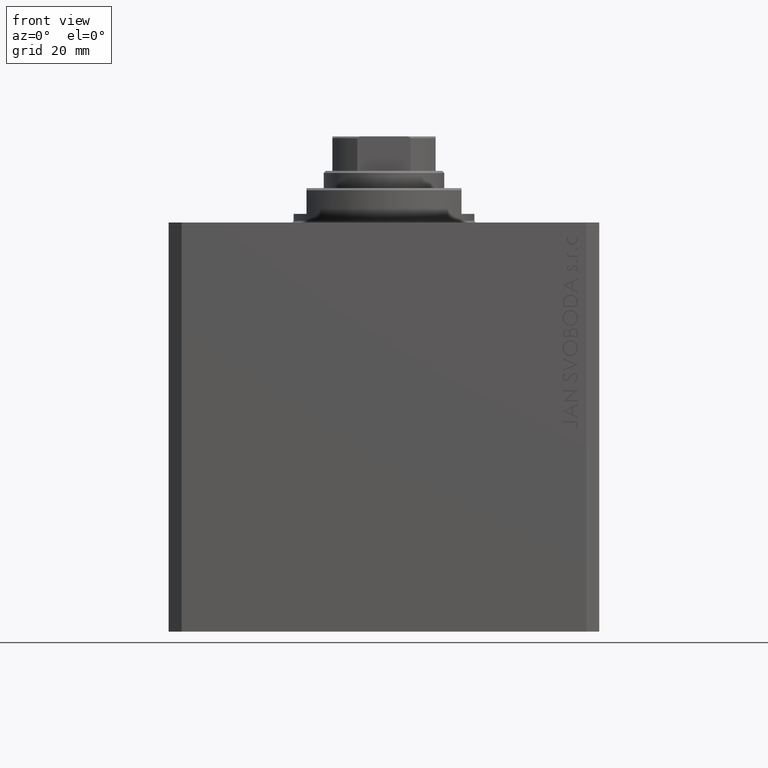
[diagram: clean part render]
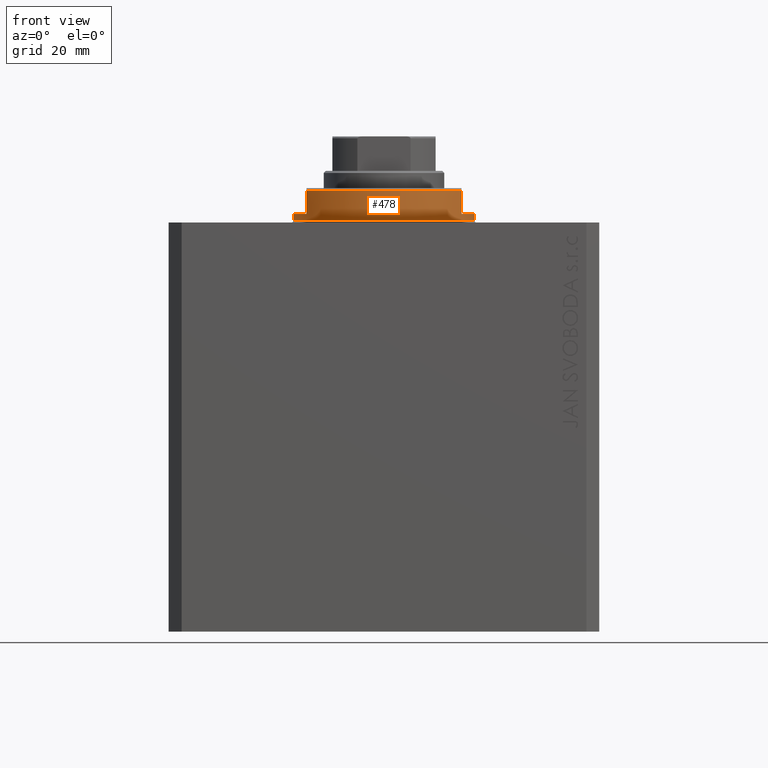
[diagram: same view with one face highlighted and labeled with its STEP entity id]
A machine part, front view. The second image highlights one B-rep face of the part: STEP entity #478.
In plain terms, the highlighted cylindrical surface (partial cylindrical patch) has radius 21 mm, axis along (0, 0, -1).
Its self-contained STEP definition (entity closure, byte-faithful):
#382 = EDGE_CURVE ( 'NONE', #28764, #35800, #24157, .T. ) ;
#478 = ADVANCED_FACE ( 'NONE', ( #22777 ), #8799, .T. ) ;
#1120 = ORIENTED_EDGE ( 'NONE', *, *, #382, .T. ) ;
#2195 = CIRCLE ( 'NONE', #9400, 21.00000000000000000 ) ;
#2723 = LINE ( 'NONE', #9925, #17222 ) ;
#3715 = DIRECTION ( 'NONE',  ( -1.000000000000000000, 0.000000000000000000, 0.000000000000000000 ) ) ;
#4050 = CARTESIAN_POINT ( 'NONE',  ( -21.00000000000000000, 2.571758278209441661E-15, -2.000000000000000000 ) ) ;
#4516 = CARTESIAN_POINT ( 'NONE',  ( -18.00000000000000000, -10.81665382639197048, -8.000000000000000000 ) ) ;
#4676 = AXIS2_PLACEMENT_3D ( 'NONE', #24680, #10489, #3715 ) ;
#4811 = CARTESIAN_POINT ( 'NONE',  ( 18.00000000000000000, -10.81665382639197048, -2.000000000000000000 ) ) ;
#6174 = CARTESIAN_POINT ( 'NONE',  ( -21.00000000000000000, 2.571758278209441661E-15, -0.5000000000000004441 ) ) ;
#7176 = ORIENTED_EDGE ( 'NONE', *, *, #42794, .F. ) ;
#8562 = EDGE_CURVE ( 'NONE', #27306, #14028, #14645, .T. ) ;
#8799 = CYLINDRICAL_SURFACE ( 'NONE', #21023, 21.00000000000000000 ) ;
#8894 = DIRECTION ( 'NONE',  ( -1.000000000000000000, 0.000000000000000000, 0.000000000000000000 ) ) ;
#9366 = EDGE_CURVE ( 'NONE', #14028, #27490, #24761, .T. ) ;
#9400 = AXIS2_PLACEMENT_3D ( 'NONE', #33997, #15796, #29786 ) ;
#9904 = EDGE_CURVE ( 'NONE', #35800, #14902, #16826, .T. ) ;
#9925 = CARTESIAN_POINT ( 'NONE',  ( 18.00000000000000000, -10.81665382639197048, -8.000000000000000000 ) ) ;
#10368 = CARTESIAN_POINT ( 'NONE',  ( -18.00000000000000000, -10.81665382639197048, -2.000000000000000000 ) ) ;
#10489 = DIRECTION ( 'NONE',  ( 0.000000000000000000, 0.000000000000000000, -1.000000000000000000 ) ) ;
#11738 = DIRECTION ( 'NONE',  ( -0.000000000000000000, -0.000000000000000000, 1.000000000000000000 ) ) ;
#12054 = DIRECTION ( 'NONE',  ( 0.000000000000000000, 0.000000000000000000, 1.000000000000000000 ) ) ;
#12174 = EDGE_CURVE ( 'NONE', #28764, #41332, #28460, .T. ) ;
#12607 = ORIENTED_EDGE ( 'NONE', *, *, #9904, .T. ) ;
#12652 = CARTESIAN_POINT ( 'NONE',  ( 18.00000000000000000, -10.81665382639197048, -7.500000000000016875 ) ) ;
#13089 = VECTOR ( 'NONE', #27992, 1000.000000000000000 ) ;
#13235 = ORIENTED_EDGE ( 'NONE', *, *, #30234, .F. ) ;
#13309 = DIRECTION ( 'NONE',  ( 0.000000000000000000, 0.000000000000000000, -1.000000000000000000 ) ) ;
#14028 = VERTEX_POINT ( 'NONE', #18751 ) ;
#14202 = CARTESIAN_POINT ( 'NONE',  ( 21.00000000000000000, 0.000000000000000000, -8.000000000000000000 ) ) ;
#14411 = VECTOR ( 'NONE', #26859, 1000.000000000000000 ) ;
#14645 = LINE ( 'NONE', #14202, #35539 ) ;
#14902 = VERTEX_POINT ( 'NONE', #12652 ) ;
#15220 = ORIENTED_EDGE ( 'NONE', *, *, #26134, .F. ) ;
#15796 = DIRECTION ( 'NONE',  ( 0.000000000000000000, 0.000000000000000000, -1.000000000000000000 ) ) ;
#15823 = LINE ( 'NONE', #43101, #14411 ) ;
#16639 = CARTESIAN_POINT ( 'NONE',  ( 0.000000000000000000, 0.000000000000000000, -0.5000000000000004441 ) ) ;
#16826 = CIRCLE ( 'NONE', #31268, 21.00000000000000000 ) ;
#17222 = VECTOR ( 'NONE', #13309, 1000.000000000000000 ) ;
#17630 = ORIENTED_EDGE ( 'NONE', *, *, #12174, .F. ) ;
#17931 = ORIENTED_EDGE ( 'NONE', *, *, #8562, .T. ) ;
#18751 = CARTESIAN_POINT ( 'NONE',  ( 21.00000000000000000, 0.000000000000000000, -0.5000000000000004441 ) ) ;
#19387 = CARTESIAN_POINT ( 'NONE',  ( 0.000000000000000000, 0.000000000000000000, -8.000000000000000000 ) ) ;
#20745 = DIRECTION ( 'NONE',  ( -0.000000000000000000, -0.000000000000000000, 1.000000000000000000 ) ) ;
#21023 = AXIS2_PLACEMENT_3D ( 'NONE', #19387, #11738, #35858 ) ;
#22777 = FACE_OUTER_BOUND ( 'NONE', #36451, .T. ) ;
#24157 = LINE ( 'NONE', #4516, #13089 ) ;
#24680 = CARTESIAN_POINT ( 'NONE',  ( 0.000000000000000000, 0.000000000000000000, -2.000000000000000000 ) ) ;
#24761 = CIRCLE ( 'NONE', #26172, 21.00000000000000000 ) ;
#26134 = EDGE_CURVE ( 'NONE', #28378, #14902, #2723, .T. ) ;
#26172 = AXIS2_PLACEMENT_3D ( 'NONE', #16639, #44352, #37608 ) ;
#26750 = ORIENTED_EDGE ( 'NONE', *, *, #9366, .T. ) ;
#26859 = DIRECTION ( 'NONE',  ( -0.000000000000000000, -0.000000000000000000, 1.000000000000000000 ) ) ;
#27306 = VERTEX_POINT ( 'NONE', #28560 ) ;
#27490 = VERTEX_POINT ( 'NONE', #6174 ) ;
#27992 = DIRECTION ( 'NONE',  ( 0.000000000000000000, 0.000000000000000000, -1.000000000000000000 ) ) ;
#28378 = VERTEX_POINT ( 'NONE', #4811 ) ;
#28460 = CIRCLE ( 'NONE', #4676, 21.00000000000000000 ) ;
#28560 = CARTESIAN_POINT ( 'NONE',  ( 21.00000000000000000, 0.000000000000000000, -2.000000000000000000 ) ) ;
#28764 = VERTEX_POINT ( 'NONE', #10368 ) ;
#29786 = DIRECTION ( 'NONE',  ( -1.000000000000000000, 0.000000000000000000, 0.000000000000000000 ) ) ;
#30234 = EDGE_CURVE ( 'NONE', #27306, #28378, #2195, .T. ) ;
#30988 = CARTESIAN_POINT ( 'NONE',  ( -18.00000000000000000, -10.81665382639197048, -7.500000000000017764 ) ) ;
#31268 = AXIS2_PLACEMENT_3D ( 'NONE', #35509, #12054, #8894 ) ;
#33997 = CARTESIAN_POINT ( 'NONE',  ( 0.000000000000000000, 0.000000000000000000, -2.000000000000000000 ) ) ;
#35509 = CARTESIAN_POINT ( 'NONE',  ( 0.000000000000000000, 0.000000000000000000, -7.500000000000016875 ) ) ;
#35539 = VECTOR ( 'NONE', #20745, 1000.000000000000000 ) ;
#35800 = VERTEX_POINT ( 'NONE', #30988 ) ;
#35858 = DIRECTION ( 'NONE',  ( 1.000000000000000000, 0.000000000000000000, 0.000000000000000000 ) ) ;
#36451 = EDGE_LOOP ( 'NONE', ( #7176, #17630, #1120, #12607, #15220, #13235, #17931, #26750 ) ) ;
#37608 = DIRECTION ( 'NONE',  ( 1.000000000000000000, 0.000000000000000000, 0.000000000000000000 ) ) ;
#41332 = VERTEX_POINT ( 'NONE', #4050 ) ;
#42794 = EDGE_CURVE ( 'NONE', #41332, #27490, #15823, .T. ) ;
#43101 = CARTESIAN_POINT ( 'NONE',  ( -21.00000000000000000, 2.571758278209441661E-15, -8.000000000000000000 ) ) ;
#44352 = DIRECTION ( 'NONE',  ( -0.000000000000000000, -0.000000000000000000, -1.000000000000000000 ) ) ;